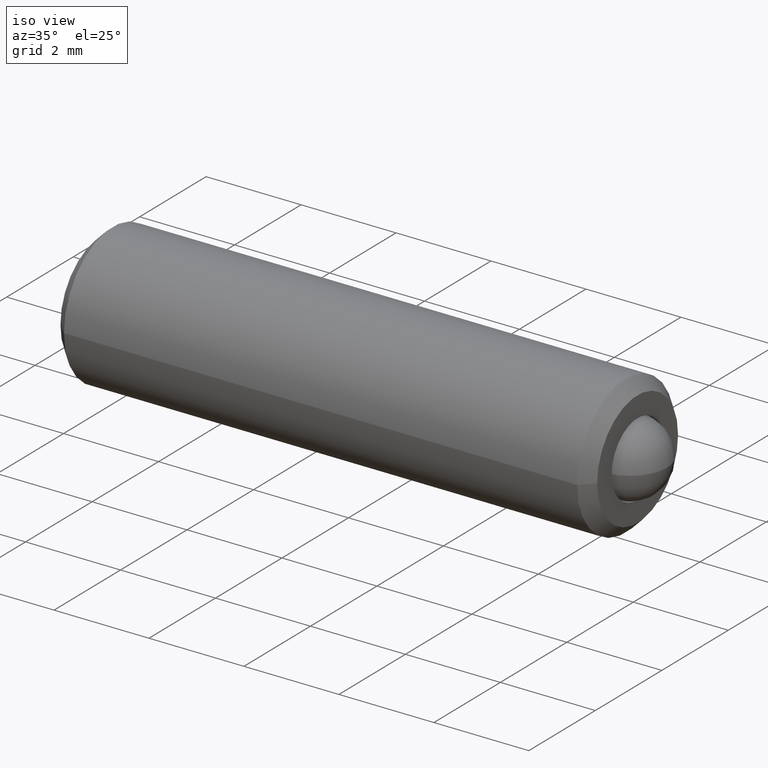
[diagram: clean part render]
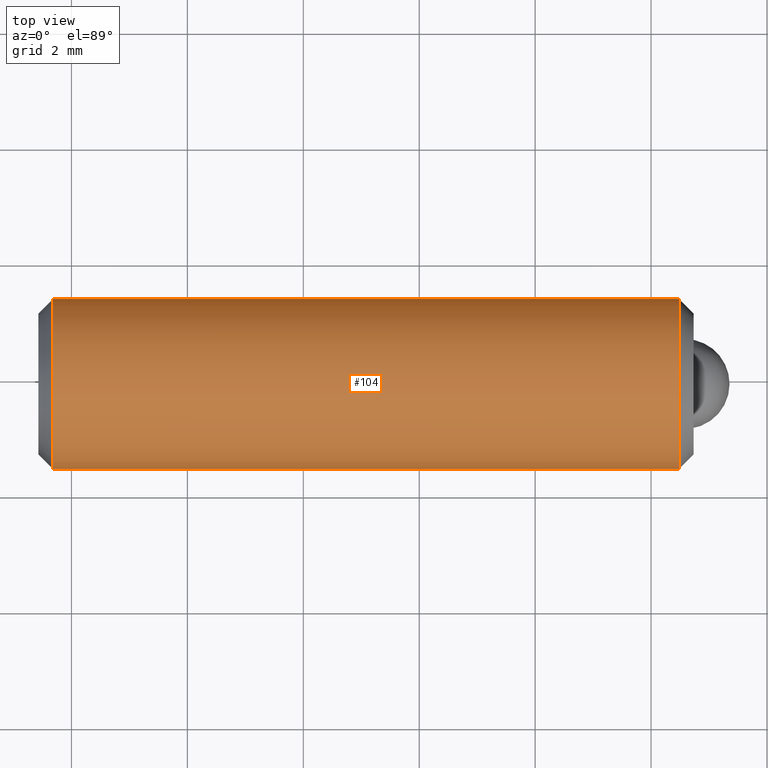
[diagram: tour spotlight — one face highlighted and labeled with its STEP entity id]
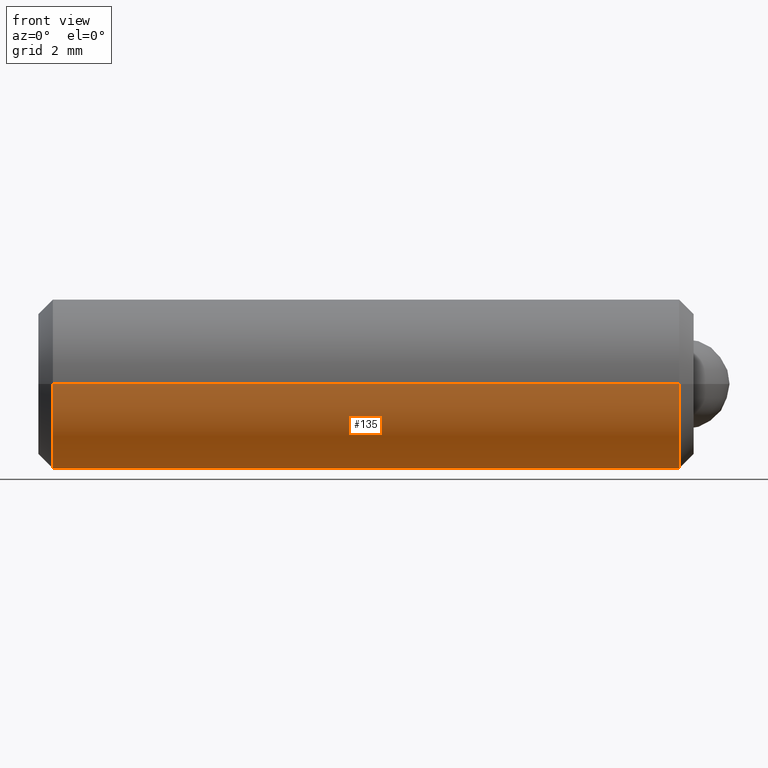
[diagram: tour spotlight — one face highlighted and labeled with its STEP entity id]
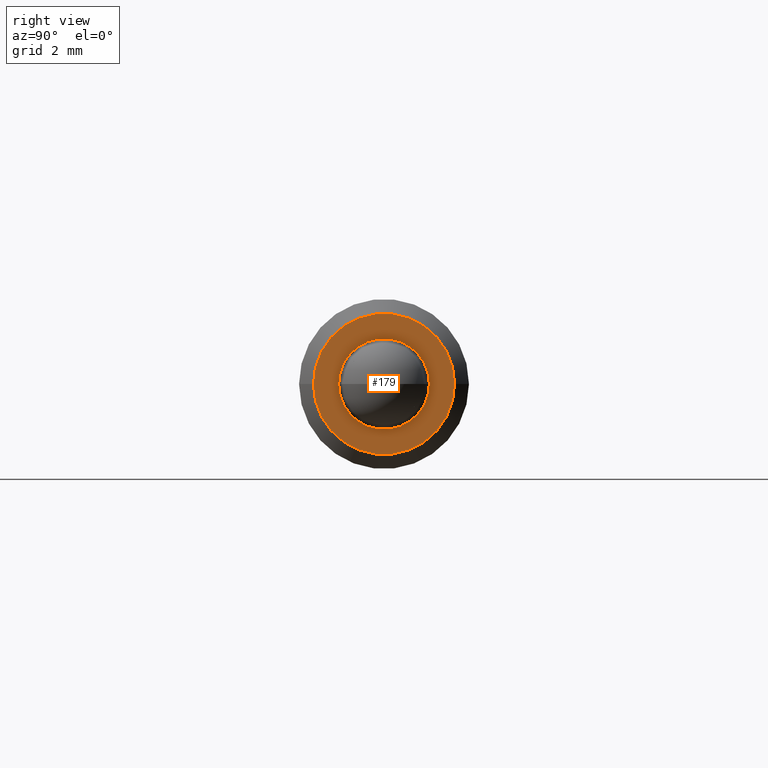
[diagram: tour spotlight — one face highlighted and labeled with its STEP entity id]
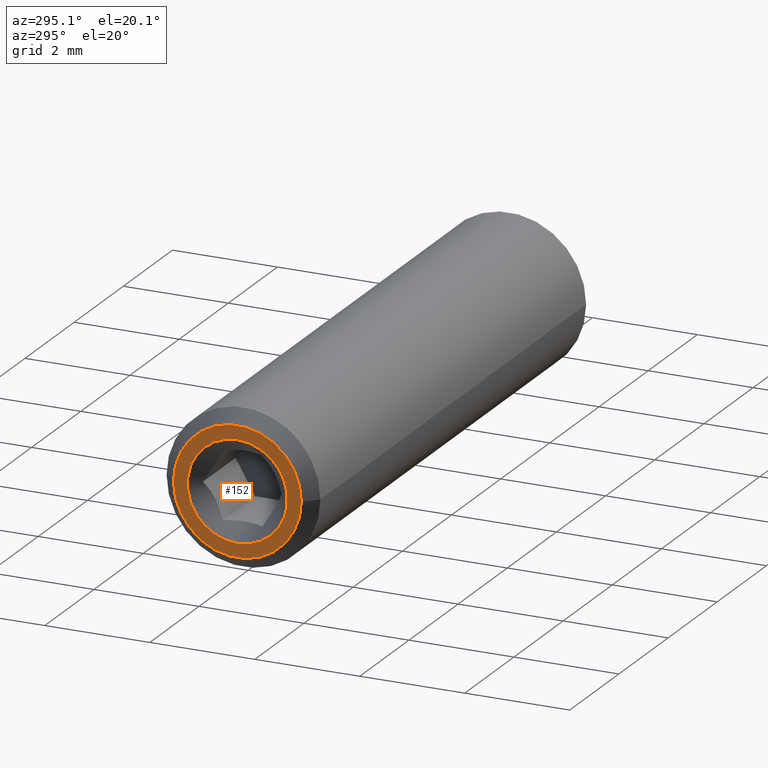
[diagram: tour spotlight — one face highlighted and labeled with its STEP entity id]
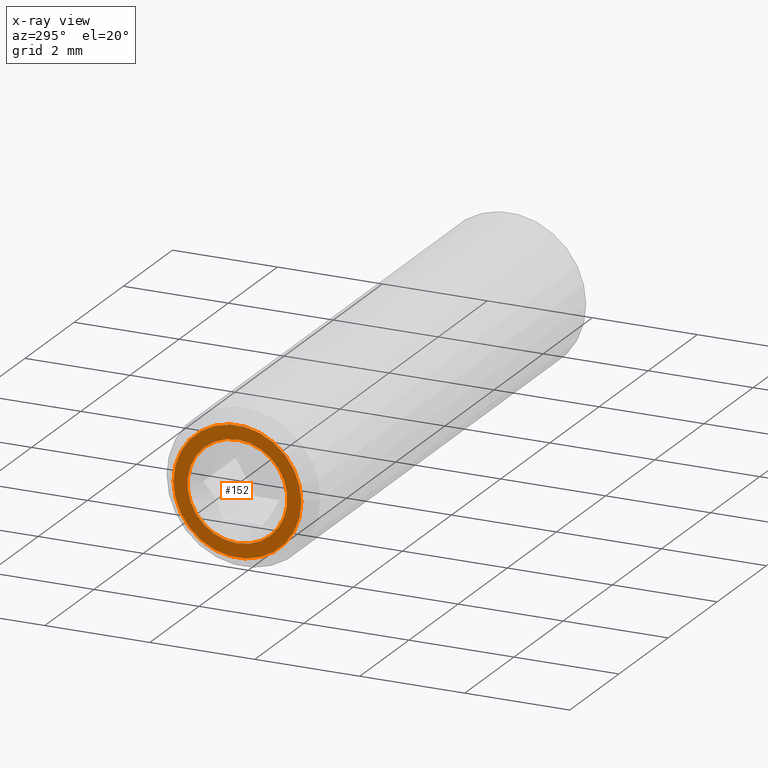
[diagram: x-ray of the same camera — body ghosted, this tour face saturated]
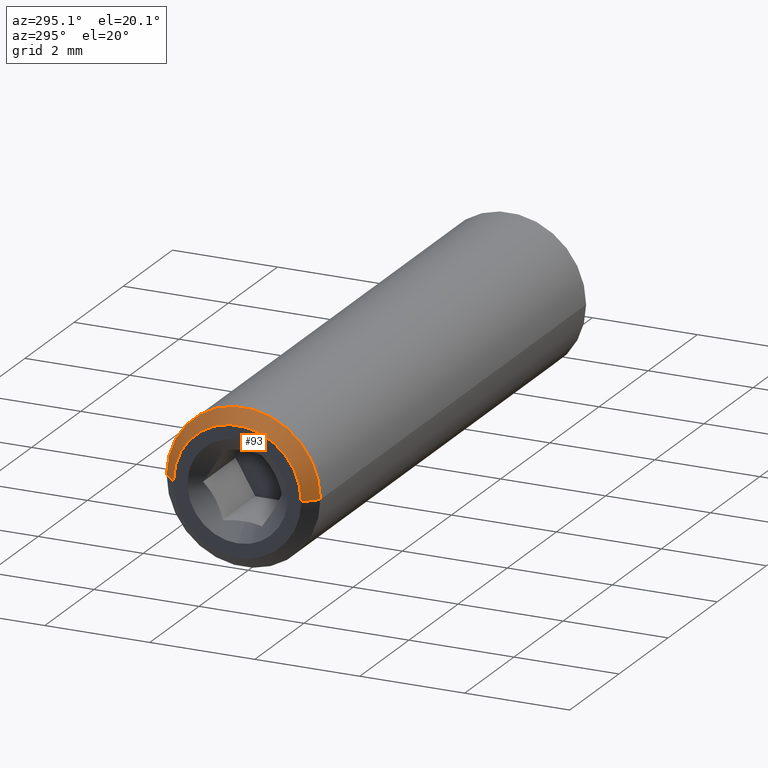
[diagram: tour spotlight — one face highlighted and labeled with its STEP entity id]
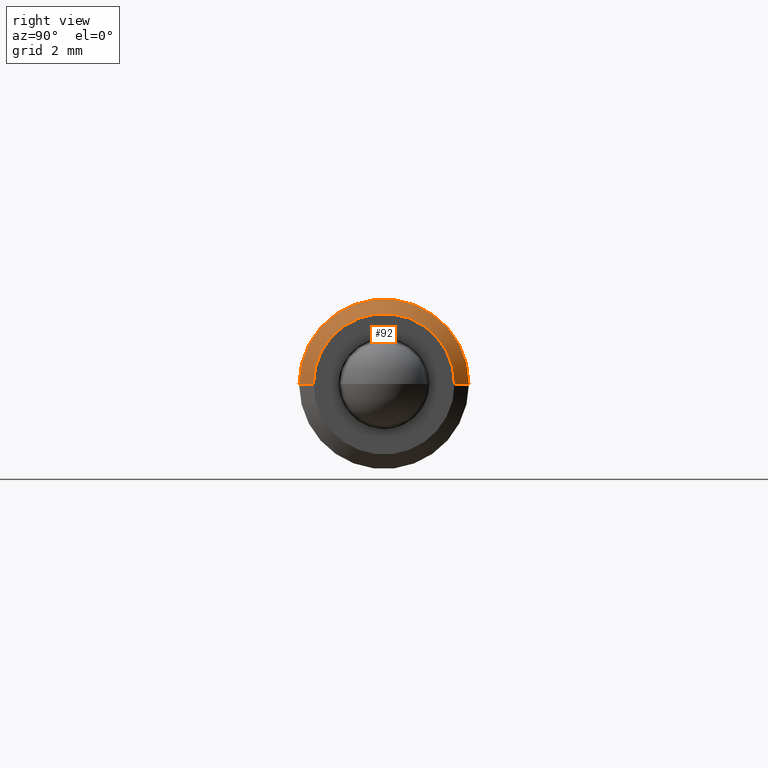
[diagram: tour spotlight — one face highlighted and labeled with its STEP entity id]
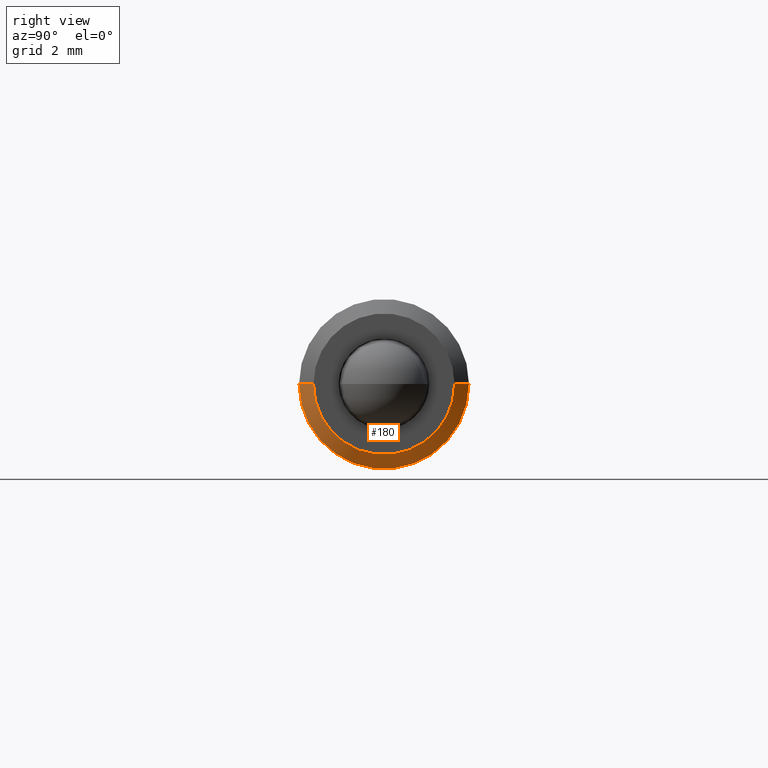
[diagram: tour spotlight — one face highlighted and labeled with its STEP entity id]
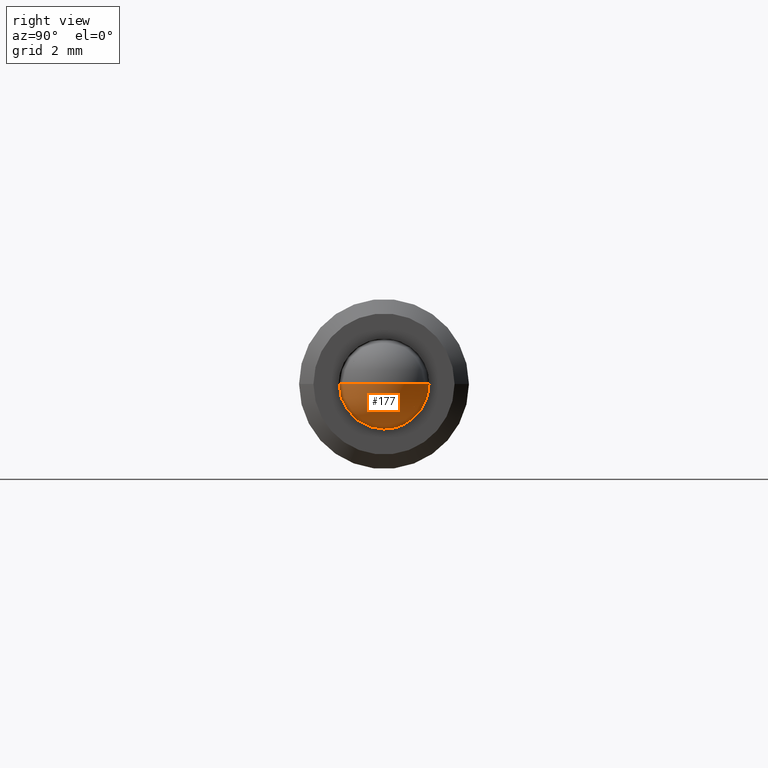
[diagram: tour spotlight — one face highlighted and labeled with its STEP entity id]
A machine part: a face-by-face anatomy tour. The part has 23 B-rep faces; the first image is the clean iso view, then the 8 largest visible faces are spotlighted one at a time (largest first), each with its STEP entity span.

Face 1 — top view, entity #104. In plain terms, the highlighted cylindrical surface (partial cylindrical patch) has radius 1.4657 mm, axis along (1, -0, -0).
Definition (entity closure, byte-faithful):
#11 = AXIS2_PLACEMENT_3D ( 'NONE', #457, #464, #536 ) ;
#29 = VECTOR ( 'NONE', #538, 39.37007874015748100 ) ;
#50 = CIRCLE ( 'NONE', #11, 0.05770329670329650600 ) ;
#104 = ADVANCED_FACE ( 'NONE', ( #274 ), #339, .T. ) ;
#115 = EDGE_CURVE ( 'NONE', #342, #366, #233, .T. ) ;
#139 = EDGE_CURVE ( 'NONE', #366, #361, #50, .T. ) ;
#168 = EDGE_CURVE ( 'NONE', #287, #361, #221, .T. ) ;
#171 = EDGE_CURVE ( 'NONE', #342, #287, #746, .T. ) ;
#221 = LINE ( 'NONE', #432, #749 ) ;
#233 = LINE ( 'NONE', #692, #29 ) ;
#274 = FACE_OUTER_BOUND ( 'NONE', #295, .T. ) ;
#285 = ORIENTED_EDGE ( 'NONE', *, *, #171, .T. ) ;
#286 = ORIENTED_EDGE ( 'NONE', *, *, #115, .F. ) ;
#287 = VERTEX_POINT ( 'NONE', #883 ) ;
#295 = EDGE_LOOP ( 'NONE', ( #285, #336, #356, #286 ) ) ;
#336 = ORIENTED_EDGE ( 'NONE', *, *, #168, .T. ) ;
#339 = CYLINDRICAL_SURFACE ( 'NONE', #858, 0.05770329670329650600 ) ;
#342 = VERTEX_POINT ( 'NONE', #877 ) ;
#356 = ORIENTED_EDGE ( 'NONE', *, *, #139, .F. ) ;
#361 = VERTEX_POINT ( 'NONE', #925 ) ;
#366 = VERTEX_POINT ( 'NONE', #875 ) ;
#400 = CARTESIAN_POINT ( 'NONE',  ( -1.036271799983990100, 0.3912487977552122100, 0.1623174067725003900 ) ) ;
#402 = DIRECTION ( 'NONE',  ( 1.000000000000000000, -4.906129737190211900E-016, -0.0000000000000000000 ) ) ;
#403 = DIRECTION ( 'NONE',  ( 0.0000000000000000000, 1.000000000000000000, 0.0000000000000000000 ) ) ;
#432 = CARTESIAN_POINT ( 'NONE',  ( -0.5269735417399165100, 0.3335455010519154400, 0.1623174067725003900 ) ) ;
#433 = DIRECTION ( 'NONE',  ( 1.000000000000000000, -4.906129737190211900E-016, -0.0000000000000000000 ) ) ;
#457 = CARTESIAN_POINT ( 'NONE',  ( -0.6108322395444296700, 0.3912487977552119900, 0.1623174067725003900 ) ) ;
#464 = DIRECTION ( 'NONE',  ( 1.000000000000000000, -4.906129737190211900E-016, -0.0000000000000000000 ) ) ;
#481 = DIRECTION ( 'NONE',  ( 1.000000000000000000, -4.906129737190211900E-016, -0.0000000000000000000 ) ) ;
#536 = DIRECTION ( 'NONE',  ( 0.0000000000000000000, 1.000000000000000000, 0.0000000000000000000 ) ) ;
#538 = DIRECTION ( 'NONE',  ( 1.000000000000000000, -4.906129737190211900E-016, -0.0000000000000000000 ) ) ;
#686 = DIRECTION ( 'NONE',  ( 0.0000000000000000000, 1.000000000000000000, 0.0000000000000000000 ) ) ;
#692 = CARTESIAN_POINT ( 'NONE',  ( -0.5269735417399165100, 0.4489520944585084200, 0.1623174067725003900 ) ) ;
#704 = CARTESIAN_POINT ( 'NONE',  ( -0.5269735417399165100, 0.3912487977552119300, 0.1623174067725003900 ) ) ;
#746 = CIRCLE ( 'NONE', #753, 0.05770329670329644300 ) ;
#749 = VECTOR ( 'NONE', #433, 39.37007874015748100 ) ;
#753 = AXIS2_PLACEMENT_3D ( 'NONE', #400, #402, #403 ) ;
#858 = AXIS2_PLACEMENT_3D ( 'NONE', #704, #481, #686 ) ;
#875 = CARTESIAN_POINT ( 'NONE',  ( -0.6108322395444296700, 0.4489520944585085300, 0.1623174067725003900 ) ) ;
#877 = CARTESIAN_POINT ( 'NONE',  ( -1.036271799983990100, 0.4489520944585086400, 0.1623174067725003900 ) ) ;
#883 = CARTESIAN_POINT ( 'NONE',  ( -1.036271799983990100, 0.3335455010519157700, 0.1623174067725003900 ) ) ;
#925 = CARTESIAN_POINT ( 'NONE',  ( -0.6108322395444296700, 0.3335455010519154900, 0.1623174067725003900 ) ) ;

Face 2 — front view, entity #135. In plain terms, the highlighted cylindrical surface (partial cylindrical patch) has radius 1.4657 mm, axis along (1, -0, -0).
Definition (entity closure, byte-faithful):
#29 = VECTOR ( 'NONE', #538, 39.37007874015748100 ) ;
#53 = AXIS2_PLACEMENT_3D ( 'NONE', #543, #588, #722 ) ;
#78 = EDGE_CURVE ( 'NONE', #287, #342, #839, .T. ) ;
#80 = EDGE_CURVE ( 'NONE', #361, #366, #793, .T. ) ;
#115 = EDGE_CURVE ( 'NONE', #342, #366, #233, .T. ) ;
#135 = ADVANCED_FACE ( 'NONE', ( #272 ), #231, .T. ) ;
#168 = EDGE_CURVE ( 'NONE', #287, #361, #221, .T. ) ;
#221 = LINE ( 'NONE', #432, #749 ) ;
#231 = CYLINDRICAL_SURFACE ( 'NONE', #53, 0.05770329670329650600 ) ;
#233 = LINE ( 'NONE', #692, #29 ) ;
#272 = FACE_OUTER_BOUND ( 'NONE', #309, .T. ) ;
#287 = VERTEX_POINT ( 'NONE', #883 ) ;
#309 = EDGE_LOOP ( 'NONE', ( #1045, #1042, #1064, #1050 ) ) ;
#342 = VERTEX_POINT ( 'NONE', #877 ) ;
#361 = VERTEX_POINT ( 'NONE', #925 ) ;
#366 = VERTEX_POINT ( 'NONE', #875 ) ;
#432 = CARTESIAN_POINT ( 'NONE',  ( -0.5269735417399165100, 0.3335455010519154400, 0.1623174067725003900 ) ) ;
#433 = DIRECTION ( 'NONE',  ( 1.000000000000000000, -4.906129737190211900E-016, -0.0000000000000000000 ) ) ;
#538 = DIRECTION ( 'NONE',  ( 1.000000000000000000, -4.906129737190211900E-016, -0.0000000000000000000 ) ) ;
#543 = CARTESIAN_POINT ( 'NONE',  ( -0.5269735417399165100, 0.3912487977552119300, 0.1623174067725003900 ) ) ;
#588 = DIRECTION ( 'NONE',  ( 1.000000000000000000, -4.906129737190211900E-016, -0.0000000000000000000 ) ) ;
#692 = CARTESIAN_POINT ( 'NONE',  ( -0.5269735417399165100, 0.4489520944585084200, 0.1623174067725003900 ) ) ;
#722 = DIRECTION ( 'NONE',  ( 0.0000000000000000000, 1.000000000000000000, 0.0000000000000000000 ) ) ;
#749 = VECTOR ( 'NONE', #433, 39.37007874015748100 ) ;
#793 = CIRCLE ( 'NONE', #845, 0.05770329670329650600 ) ;
#803 = AXIS2_PLACEMENT_3D ( 'NONE', #974, #1036, #992 ) ;
#839 = CIRCLE ( 'NONE', #803, 0.05770329670329644300 ) ;
#845 = AXIS2_PLACEMENT_3D ( 'NONE', #1025, #985, #1035 ) ;
#875 = CARTESIAN_POINT ( 'NONE',  ( -0.6108322395444296700, 0.4489520944585085300, 0.1623174067725003900 ) ) ;
#877 = CARTESIAN_POINT ( 'NONE',  ( -1.036271799983990100, 0.4489520944585086400, 0.1623174067725003900 ) ) ;
#883 = CARTESIAN_POINT ( 'NONE',  ( -1.036271799983990100, 0.3335455010519157700, 0.1623174067725003900 ) ) ;
#925 = CARTESIAN_POINT ( 'NONE',  ( -0.6108322395444296700, 0.3335455010519154900, 0.1623174067725003900 ) ) ;
#974 = CARTESIAN_POINT ( 'NONE',  ( -1.036271799983990100, 0.3912487977552122100, 0.1623174067725003900 ) ) ;
#985 = DIRECTION ( 'NONE',  ( 1.000000000000000000, -4.906129737190211900E-016, -0.0000000000000000000 ) ) ;
#992 = DIRECTION ( 'NONE',  ( 0.0000000000000000000, 1.000000000000000000, 0.0000000000000000000 ) ) ;
#1025 = CARTESIAN_POINT ( 'NONE',  ( -0.6108322395444296700, 0.3912487977552119900, 0.1623174067725003900 ) ) ;
#1035 = DIRECTION ( 'NONE',  ( 0.0000000000000000000, 1.000000000000000000, 0.0000000000000000000 ) ) ;
#1036 = DIRECTION ( 'NONE',  ( 1.000000000000000000, -4.906129737190211900E-016, -0.0000000000000000000 ) ) ;
#1042 = ORIENTED_EDGE ( 'NONE', *, *, #78, .T. ) ;
#1045 = ORIENTED_EDGE ( 'NONE', *, *, #168, .F. ) ;
#1050 = ORIENTED_EDGE ( 'NONE', *, *, #80, .F. ) ;
#1064 = ORIENTED_EDGE ( 'NONE', *, *, #115, .T. ) ;

Face 3 — right view, entity #179. In plain terms, the highlighted planar face has unit normal (1, -0, -0).
Definition (entity closure, byte-faithful):
#75 = EDGE_CURVE ( 'NONE', #324, #346, #846, .T. ) ;
#76 = EDGE_CURVE ( 'NONE', #282, #326, #822, .T. ) ;
#179 = ADVANCED_FACE ( 'NONE', ( #258, #259 ), #513, .T. ) ;
#182 = EDGE_CURVE ( 'NONE', #326, #282, #778, .T. ) ;
#185 = EDGE_CURVE ( 'NONE', #346, #324, #789, .T. ) ;
#258 = FACE_OUTER_BOUND ( 'NONE', #304, .T. ) ;
#259 = FACE_BOUND ( 'NONE', #308, .T. ) ;
#282 = VERTEX_POINT ( 'NONE', #900 ) ;
#304 = EDGE_LOOP ( 'NONE', ( #1054, #1048 ) ) ;
#308 = EDGE_LOOP ( 'NONE', ( #1043, #1056 ) ) ;
#324 = VERTEX_POINT ( 'NONE', #934 ) ;
#326 = VERTEX_POINT ( 'NONE', #923 ) ;
#346 = VERTEX_POINT ( 'NONE', #885 ) ;
#425 = CARTESIAN_POINT ( 'NONE',  ( -0.6010520197642105200, 0.3912487977552119900, 0.1623174067725003900 ) ) ;
#513 = PLANE ( 'NONE',  #779 ) ;
#514 = CARTESIAN_POINT ( 'NONE',  ( -0.6010520197642108500, 0.009662394496970686300, 0.1623174067725003900 ) ) ;
#515 = DIRECTION ( 'NONE',  ( 1.000000000000000000, -4.906129737190211900E-016, -0.0000000000000000000 ) ) ;
#522 = DIRECTION ( 'NONE',  ( 4.906129737190211900E-016, 1.000000000000000000, 0.0000000000000000000 ) ) ;
#619 = DIRECTION ( 'NONE',  ( 1.000000000000000000, -4.906129737190211900E-016, -0.0000000000000000000 ) ) ;
#644 = DIRECTION ( 'NONE',  ( 0.0000000000000000000, 1.000000000000000000, 0.0000000000000000000 ) ) ;
#775 = AXIS2_PLACEMENT_3D ( 'NONE', #425, #619, #644 ) ;
#778 = CIRCLE ( 'NONE', #775, 0.03080769230769248700 ) ;
#779 = AXIS2_PLACEMENT_3D ( 'NONE', #514, #515, #522 ) ;
#789 = CIRCLE ( 'NONE', #790, 0.04792307692307736000 ) ;
#790 = AXIS2_PLACEMENT_3D ( 'NONE', #879, #928, #929 ) ;
#813 = AXIS2_PLACEMENT_3D ( 'NONE', #1017, #965, #1021 ) ;
#822 = CIRCLE ( 'NONE', #856, 0.03080769230769248700 ) ;
#846 = CIRCLE ( 'NONE', #813, 0.04792307692307736000 ) ;
#856 = AXIS2_PLACEMENT_3D ( 'NONE', #997, #1037, #966 ) ;
#879 = CARTESIAN_POINT ( 'NONE',  ( -0.6010520197642108500, 0.3912487977552119900, 0.1623174067725003900 ) ) ;
#885 = CARTESIAN_POINT ( 'NONE',  ( -0.6010520197642108500, 0.4391718746782893300, 0.1623174067725003900 ) ) ;
#900 = CARTESIAN_POINT ( 'NONE',  ( -0.6010520197642105200, 0.4220564900629044700, 0.1623174067725003900 ) ) ;
#923 = CARTESIAN_POINT ( 'NONE',  ( -0.6010520197642105200, 0.3604411054475195100, 0.1623174067725003900 ) ) ;
#928 = DIRECTION ( 'NONE',  ( 1.000000000000000000, -4.906129737190211900E-016, -0.0000000000000000000 ) ) ;
#929 = DIRECTION ( 'NONE',  ( 0.0000000000000000000, 1.000000000000000000, 0.0000000000000000000 ) ) ;
#934 = CARTESIAN_POINT ( 'NONE',  ( -0.6010520197642108500, 0.3433257208321346400, 0.1623174067725003900 ) ) ;
#965 = DIRECTION ( 'NONE',  ( 1.000000000000000000, -4.906129737190211900E-016, -0.0000000000000000000 ) ) ;
#966 = DIRECTION ( 'NONE',  ( 0.0000000000000000000, 1.000000000000000000, 0.0000000000000000000 ) ) ;
#997 = CARTESIAN_POINT ( 'NONE',  ( -0.6010520197642105200, 0.3912487977552119900, 0.1623174067725003900 ) ) ;
#1017 = CARTESIAN_POINT ( 'NONE',  ( -0.6010520197642108500, 0.3912487977552119900, 0.1623174067725003900 ) ) ;
#1021 = DIRECTION ( 'NONE',  ( 0.0000000000000000000, 1.000000000000000000, 0.0000000000000000000 ) ) ;
#1037 = DIRECTION ( 'NONE',  ( 1.000000000000000000, -4.906129737190211900E-016, -0.0000000000000000000 ) ) ;
#1043 = ORIENTED_EDGE ( 'NONE', *, *, #76, .F. ) ;
#1048 = ORIENTED_EDGE ( 'NONE', *, *, #185, .T. ) ;
#1054 = ORIENTED_EDGE ( 'NONE', *, *, #75, .T. ) ;
#1056 = ORIENTED_EDGE ( 'NONE', *, *, #182, .F. ) ;

Face 4 — auxiliary view, entity #152. An x-ray twin of the same camera follows (body ghosted, this face saturated) — the face is partly hidden behind the body. In plain terms, the highlighted planar face has unit normal (1, -0, -0).
Definition (entity closure, byte-faithful):
#14 = AXIS2_PLACEMENT_3D ( 'NONE', #687, #683, #685 ) ;
#51 = AXIS2_PLACEMENT_3D ( 'NONE', #490, #711, #710 ) ;
#77 = EDGE_CURVE ( 'NONE', #335, #289, #843, .T. ) ;
#79 = EDGE_CURVE ( 'NONE', #283, #277, #863, .T. ) ;
#86 = EDGE_CURVE ( 'NONE', #277, #283, #852, .T. ) ;
#114 = EDGE_CURVE ( 'NONE', #289, #335, #838, .T. ) ;
#152 = ADVANCED_FACE ( 'NONE', ( #222, #219 ), #516, .F. ) ;
#219 = FACE_OUTER_BOUND ( 'NONE', #312, .T. ) ;
#222 = FACE_BOUND ( 'NONE', #315, .T. ) ;
#277 = VERTEX_POINT ( 'NONE', #931 ) ;
#283 = VERTEX_POINT ( 'NONE', #920 ) ;
#289 = VERTEX_POINT ( 'NONE', #894 ) ;
#312 = EDGE_LOOP ( 'NONE', ( #1049, #1062 ) ) ;
#315 = EDGE_LOOP ( 'NONE', ( #1057, #1046 ) ) ;
#335 = VERTEX_POINT ( 'NONE', #895 ) ;
#453 = CARTESIAN_POINT ( 'NONE',  ( -1.046052019764210000, 0.3912487977552124300, 0.1623174067724998400 ) ) ;
#490 = CARTESIAN_POINT ( 'NONE',  ( -1.046052019764210300, 0.009662394496967477100, 0.1623174067725003900 ) ) ;
#516 = PLANE ( 'NONE',  #51 ) ;
#559 = DIRECTION ( 'NONE',  ( -1.000000000000000000, 4.906129737190211900E-016, 0.0000000000000000000 ) ) ;
#608 = DIRECTION ( 'NONE',  ( 0.0000000000000000000, 0.0000000000000000000, 1.000000000000000000 ) ) ;
#683 = DIRECTION ( 'NONE',  ( 1.000000000000000000, -4.906129737190211900E-016, -0.0000000000000000000 ) ) ;
#685 = DIRECTION ( 'NONE',  ( 0.0000000000000000000, 1.000000000000000000, 0.0000000000000000000 ) ) ;
#687 = CARTESIAN_POINT ( 'NONE',  ( -1.046052019764210000, 0.3912487977552122100, 0.1623174067725003900 ) ) ;
#710 = DIRECTION ( 'NONE',  ( 4.906129737190211900E-016, 1.000000000000000000, 0.0000000000000000000 ) ) ;
#711 = DIRECTION ( 'NONE',  ( 1.000000000000000000, -4.906129737190211900E-016, -0.0000000000000000000 ) ) ;
#802 = AXIS2_PLACEMENT_3D ( 'NONE', #1033, #1007, #1023 ) ;
#804 = AXIS2_PLACEMENT_3D ( 'NONE', #1024, #1019, #983 ) ;
#821 = AXIS2_PLACEMENT_3D ( 'NONE', #453, #559, #608 ) ;
#838 = CIRCLE ( 'NONE', #14, 0.04792307692307702000 ) ;
#843 = CIRCLE ( 'NONE', #804, 0.04792307692307702000 ) ;
#852 = CIRCLE ( 'NONE', #821, 0.03750000000000090100 ) ;
#863 = CIRCLE ( 'NONE', #802, 0.03750000000000090100 ) ;
#894 = CARTESIAN_POINT ( 'NONE',  ( -1.046052019764210000, 0.4391718746782892200, 0.1623174067725003900 ) ) ;
#895 = CARTESIAN_POINT ( 'NONE',  ( -1.046052019764210000, 0.3433257208321351900, 0.1623174067725003900 ) ) ;
#920 = CARTESIAN_POINT ( 'NONE',  ( -1.046052019764210000, 0.3912487977552124300, 0.1998174067725007300 ) ) ;
#931 = CARTESIAN_POINT ( 'NONE',  ( -1.046052019764210000, 0.3912487977552124300, 0.1248174067724989500 ) ) ;
#983 = DIRECTION ( 'NONE',  ( 0.0000000000000000000, 1.000000000000000000, 0.0000000000000000000 ) ) ;
#1007 = DIRECTION ( 'NONE',  ( -1.000000000000000000, 4.906129737190211900E-016, 0.0000000000000000000 ) ) ;
#1019 = DIRECTION ( 'NONE',  ( 1.000000000000000000, -4.906129737190211900E-016, -0.0000000000000000000 ) ) ;
#1023 = DIRECTION ( 'NONE',  ( 0.0000000000000000000, 0.0000000000000000000, 1.000000000000000000 ) ) ;
#1024 = CARTESIAN_POINT ( 'NONE',  ( -1.046052019764210000, 0.3912487977552122100, 0.1623174067725003900 ) ) ;
#1033 = CARTESIAN_POINT ( 'NONE',  ( -1.046052019764210000, 0.3912487977552124300, 0.1623174067724998400 ) ) ;
#1046 = ORIENTED_EDGE ( 'NONE', *, *, #86, .F. ) ;
#1049 = ORIENTED_EDGE ( 'NONE', *, *, #114, .F. ) ;
#1057 = ORIENTED_EDGE ( 'NONE', *, *, #79, .F. ) ;
#1062 = ORIENTED_EDGE ( 'NONE', *, *, #77, .F. ) ;

Face 5 — auxiliary view, entity #93. In plain terms, the highlighted conical surface has half-angle 45 deg.
Definition (entity closure, byte-faithful):
#14 = AXIS2_PLACEMENT_3D ( 'NONE', #687, #683, #685 ) ;
#54 = VECTOR ( 'NONE', #569, 39.37007874015748100 ) ;
#59 = VECTOR ( 'NONE', #691, 39.37007874015748100 ) ;
#93 = ADVANCED_FACE ( 'NONE', ( #388 ), #829, .T. ) ;
#114 = EDGE_CURVE ( 'NONE', #289, #335, #838, .T. ) ;
#123 = EDGE_CURVE ( 'NONE', #335, #287, #238, .T. ) ;
#140 = EDGE_CURVE ( 'NONE', #289, #342, #217, .T. ) ;
#171 = EDGE_CURVE ( 'NONE', #342, #287, #746, .T. ) ;
#217 = LINE ( 'NONE', #537, #54 ) ;
#238 = LINE ( 'NONE', #533, #59 ) ;
#287 = VERTEX_POINT ( 'NONE', #883 ) ;
#289 = VERTEX_POINT ( 'NONE', #894 ) ;
#299 = EDGE_LOOP ( 'NONE', ( #375, #337, #334, #377 ) ) ;
#334 = ORIENTED_EDGE ( 'NONE', *, *, #171, .F. ) ;
#335 = VERTEX_POINT ( 'NONE', #895 ) ;
#337 = ORIENTED_EDGE ( 'NONE', *, *, #123, .T. ) ;
#342 = VERTEX_POINT ( 'NONE', #877 ) ;
#375 = ORIENTED_EDGE ( 'NONE', *, *, #114, .T. ) ;
#377 = ORIENTED_EDGE ( 'NONE', *, *, #140, .F. ) ;
#388 = FACE_OUTER_BOUND ( 'NONE', #299, .T. ) ;
#400 = CARTESIAN_POINT ( 'NONE',  ( -1.036271799983990100, 0.3912487977552122100, 0.1623174067725003900 ) ) ;
#402 = DIRECTION ( 'NONE',  ( 1.000000000000000000, -4.906129737190211900E-016, -0.0000000000000000000 ) ) ;
#403 = DIRECTION ( 'NONE',  ( 0.0000000000000000000, 1.000000000000000000, 0.0000000000000000000 ) ) ;
#449 = DIRECTION ( 'NONE',  ( 1.000000000000000000, -4.906129737190211900E-016, -0.0000000000000000000 ) ) ;
#477 = DIRECTION ( 'NONE',  ( 0.0000000000000000000, 1.000000000000000000, 0.0000000000000000000 ) ) ;
#533 = CARTESIAN_POINT ( 'NONE',  ( -1.046052019764210000, 0.3433257208321351900, 0.1623174067725003900 ) ) ;
#537 = CARTESIAN_POINT ( 'NONE',  ( -1.046052019764210000, 0.4391718746782892200, 0.1623174067725003900 ) ) ;
#569 = DIRECTION ( 'NONE',  ( 0.7071067811865672200, 0.7071067811865278100, 0.0000000000000000000 ) ) ;
#659 = CARTESIAN_POINT ( 'NONE',  ( -1.046052019764210000, 0.3912487977552122100, 0.1623174067725003900 ) ) ;
#683 = DIRECTION ( 'NONE',  ( 1.000000000000000000, -4.906129737190211900E-016, -0.0000000000000000000 ) ) ;
#685 = DIRECTION ( 'NONE',  ( 0.0000000000000000000, 1.000000000000000000, 0.0000000000000000000 ) ) ;
#687 = CARTESIAN_POINT ( 'NONE',  ( -1.046052019764210000, 0.3912487977552122100, 0.1623174067725003900 ) ) ;
#691 = DIRECTION ( 'NONE',  ( 0.7071067811865665600, -0.7071067811865284800, 8.659560562354696200E-017 ) ) ;
#746 = CIRCLE ( 'NONE', #753, 0.05770329670329644300 ) ;
#753 = AXIS2_PLACEMENT_3D ( 'NONE', #400, #402, #403 ) ;
#819 = AXIS2_PLACEMENT_3D ( 'NONE', #659, #449, #477 ) ;
#829 = CONICAL_SURFACE ( 'NONE', #819, 0.04792307692307702000, 0.7853981633974208600 ) ;
#838 = CIRCLE ( 'NONE', #14, 0.04792307692307702000 ) ;
#877 = CARTESIAN_POINT ( 'NONE',  ( -1.036271799983990100, 0.4489520944585086400, 0.1623174067725003900 ) ) ;
#883 = CARTESIAN_POINT ( 'NONE',  ( -1.036271799983990100, 0.3335455010519157700, 0.1623174067725003900 ) ) ;
#894 = CARTESIAN_POINT ( 'NONE',  ( -1.046052019764210000, 0.4391718746782892200, 0.1623174067725003900 ) ) ;
#895 = CARTESIAN_POINT ( 'NONE',  ( -1.046052019764210000, 0.3433257208321351900, 0.1623174067725003900 ) ) ;

Face 6 — right view, entity #92. In plain terms, the highlighted conical surface has half-angle 45 deg.
Definition (entity closure, byte-faithful):
#11 = AXIS2_PLACEMENT_3D ( 'NONE', #457, #464, #536 ) ;
#15 = VECTOR ( 'NONE', #729, 39.37007874015748100 ) ;
#30 = VECTOR ( 'NONE', #597, 39.37007874015748100 ) ;
#50 = CIRCLE ( 'NONE', #11, 0.05770329670329650600 ) ;
#92 = ADVANCED_FACE ( 'NONE', ( #378 ), #840, .T. ) ;
#139 = EDGE_CURVE ( 'NONE', #366, #361, #50, .T. ) ;
#144 = EDGE_CURVE ( 'NONE', #324, #361, #235, .T. ) ;
#154 = EDGE_CURVE ( 'NONE', #346, #366, #245, .T. ) ;
#185 = EDGE_CURVE ( 'NONE', #346, #324, #789, .T. ) ;
#235 = LINE ( 'NONE', #712, #30 ) ;
#245 = LINE ( 'NONE', #706, #15 ) ;
#305 = EDGE_LOOP ( 'NONE', ( #345, #330, #333, #357 ) ) ;
#324 = VERTEX_POINT ( 'NONE', #934 ) ;
#330 = ORIENTED_EDGE ( 'NONE', *, *, #154, .T. ) ;
#333 = ORIENTED_EDGE ( 'NONE', *, *, #139, .T. ) ;
#345 = ORIENTED_EDGE ( 'NONE', *, *, #185, .F. ) ;
#346 = VERTEX_POINT ( 'NONE', #885 ) ;
#357 = ORIENTED_EDGE ( 'NONE', *, *, #144, .F. ) ;
#361 = VERTEX_POINT ( 'NONE', #925 ) ;
#366 = VERTEX_POINT ( 'NONE', #875 ) ;
#378 = FACE_OUTER_BOUND ( 'NONE', #305, .T. ) ;
#457 = CARTESIAN_POINT ( 'NONE',  ( -0.6108322395444296700, 0.3912487977552119900, 0.1623174067725003900 ) ) ;
#464 = DIRECTION ( 'NONE',  ( 1.000000000000000000, -4.906129737190211900E-016, -0.0000000000000000000 ) ) ;
#510 = CARTESIAN_POINT ( 'NONE',  ( -0.6010520197642108500, 0.3912487977552119900, 0.1623174067725003900 ) ) ;
#511 = DIRECTION ( 'NONE',  ( -1.000000000000000000, 4.906129737190211900E-016, 0.0000000000000000000 ) ) ;
#536 = DIRECTION ( 'NONE',  ( 0.0000000000000000000, 1.000000000000000000, 0.0000000000000000000 ) ) ;
#597 = DIRECTION ( 'NONE',  ( -0.7071067811865380200, -0.7071067811865570100, 0.0000000000000000000 ) ) ;
#706 = CARTESIAN_POINT ( 'NONE',  ( -0.6010520197642108500, 0.4391718746782893300, 0.1623174067725003900 ) ) ;
#712 = CARTESIAN_POINT ( 'NONE',  ( -0.6010520197642108500, 0.3433257208321346400, 0.1623174067725003900 ) ) ;
#729 = DIRECTION ( 'NONE',  ( -0.7071067811865373600, 0.7071067811865576800, 8.659560562355053700E-017 ) ) ;
#732 = DIRECTION ( 'NONE',  ( 0.0000000000000000000, -1.000000000000000000, 0.0000000000000000000 ) ) ;
#789 = CIRCLE ( 'NONE', #790, 0.04792307692307736000 ) ;
#790 = AXIS2_PLACEMENT_3D ( 'NONE', #879, #928, #929 ) ;
#840 = CONICAL_SURFACE ( 'NONE', #870, 0.04792307692307736000, 0.7853981633974621600 ) ;
#870 = AXIS2_PLACEMENT_3D ( 'NONE', #510, #511, #732 ) ;
#875 = CARTESIAN_POINT ( 'NONE',  ( -0.6108322395444296700, 0.4489520944585085300, 0.1623174067725003900 ) ) ;
#879 = CARTESIAN_POINT ( 'NONE',  ( -0.6010520197642108500, 0.3912487977552119900, 0.1623174067725003900 ) ) ;
#885 = CARTESIAN_POINT ( 'NONE',  ( -0.6010520197642108500, 0.4391718746782893300, 0.1623174067725003900 ) ) ;
#925 = CARTESIAN_POINT ( 'NONE',  ( -0.6108322395444296700, 0.3335455010519154900, 0.1623174067725003900 ) ) ;
#928 = DIRECTION ( 'NONE',  ( 1.000000000000000000, -4.906129737190211900E-016, -0.0000000000000000000 ) ) ;
#929 = DIRECTION ( 'NONE',  ( 0.0000000000000000000, 1.000000000000000000, 0.0000000000000000000 ) ) ;
#934 = CARTESIAN_POINT ( 'NONE',  ( -0.6010520197642108500, 0.3433257208321346400, 0.1623174067725003900 ) ) ;

Face 7 — right view, entity #180. In plain terms, the highlighted conical surface has half-angle 45 deg.
Definition (entity closure, byte-faithful):
#15 = VECTOR ( 'NONE', #729, 39.37007874015748100 ) ;
#30 = VECTOR ( 'NONE', #597, 39.37007874015748100 ) ;
#75 = EDGE_CURVE ( 'NONE', #324, #346, #846, .T. ) ;
#80 = EDGE_CURVE ( 'NONE', #361, #366, #793, .T. ) ;
#144 = EDGE_CURVE ( 'NONE', #324, #361, #235, .T. ) ;
#154 = EDGE_CURVE ( 'NONE', #346, #366, #245, .T. ) ;
#180 = ADVANCED_FACE ( 'NONE', ( #262 ), #784, .T. ) ;
#235 = LINE ( 'NONE', #712, #30 ) ;
#245 = LINE ( 'NONE', #706, #15 ) ;
#262 = FACE_OUTER_BOUND ( 'NONE', #307, .T. ) ;
#307 = EDGE_LOOP ( 'NONE', ( #1063, #1051, #1061, #1044 ) ) ;
#324 = VERTEX_POINT ( 'NONE', #934 ) ;
#346 = VERTEX_POINT ( 'NONE', #885 ) ;
#361 = VERTEX_POINT ( 'NONE', #925 ) ;
#366 = VERTEX_POINT ( 'NONE', #875 ) ;
#401 = CARTESIAN_POINT ( 'NONE',  ( -0.6010520197642108500, 0.3912487977552119900, 0.1623174067725003900 ) ) ;
#405 = DIRECTION ( 'NONE',  ( -1.000000000000000000, 4.906129737190211900E-016, 0.0000000000000000000 ) ) ;
#597 = DIRECTION ( 'NONE',  ( -0.7071067811865380200, -0.7071067811865570100, 0.0000000000000000000 ) ) ;
#639 = DIRECTION ( 'NONE',  ( 0.0000000000000000000, -1.000000000000000000, 0.0000000000000000000 ) ) ;
#706 = CARTESIAN_POINT ( 'NONE',  ( -0.6010520197642108500, 0.4391718746782893300, 0.1623174067725003900 ) ) ;
#712 = CARTESIAN_POINT ( 'NONE',  ( -0.6010520197642108500, 0.3433257208321346400, 0.1623174067725003900 ) ) ;
#729 = DIRECTION ( 'NONE',  ( -0.7071067811865373600, 0.7071067811865576800, 8.659560562355053700E-017 ) ) ;
#736 = AXIS2_PLACEMENT_3D ( 'NONE', #401, #405, #639 ) ;
#784 = CONICAL_SURFACE ( 'NONE', #736, 0.04792307692307736000, 0.7853981633974621600 ) ;
#793 = CIRCLE ( 'NONE', #845, 0.05770329670329650600 ) ;
#813 = AXIS2_PLACEMENT_3D ( 'NONE', #1017, #965, #1021 ) ;
#845 = AXIS2_PLACEMENT_3D ( 'NONE', #1025, #985, #1035 ) ;
#846 = CIRCLE ( 'NONE', #813, 0.04792307692307736000 ) ;
#875 = CARTESIAN_POINT ( 'NONE',  ( -0.6108322395444296700, 0.4489520944585085300, 0.1623174067725003900 ) ) ;
#885 = CARTESIAN_POINT ( 'NONE',  ( -0.6010520197642108500, 0.4391718746782893300, 0.1623174067725003900 ) ) ;
#925 = CARTESIAN_POINT ( 'NONE',  ( -0.6108322395444296700, 0.3335455010519154900, 0.1623174067725003900 ) ) ;
#934 = CARTESIAN_POINT ( 'NONE',  ( -0.6010520197642108500, 0.3433257208321346400, 0.1623174067725003900 ) ) ;
#965 = DIRECTION ( 'NONE',  ( 1.000000000000000000, -4.906129737190211900E-016, -0.0000000000000000000 ) ) ;
#985 = DIRECTION ( 'NONE',  ( 1.000000000000000000, -4.906129737190211900E-016, -0.0000000000000000000 ) ) ;
#1017 = CARTESIAN_POINT ( 'NONE',  ( -0.6010520197642108500, 0.3912487977552119900, 0.1623174067725003900 ) ) ;
#1021 = DIRECTION ( 'NONE',  ( 0.0000000000000000000, 1.000000000000000000, 0.0000000000000000000 ) ) ;
#1025 = CARTESIAN_POINT ( 'NONE',  ( -0.6108322395444296700, 0.3912487977552119900, 0.1623174067725003900 ) ) ;
#1035 = DIRECTION ( 'NONE',  ( 0.0000000000000000000, 1.000000000000000000, 0.0000000000000000000 ) ) ;
#1044 = ORIENTED_EDGE ( 'NONE', *, *, #80, .T. ) ;
#1051 = ORIENTED_EDGE ( 'NONE', *, *, #75, .F. ) ;
#1061 = ORIENTED_EDGE ( 'NONE', *, *, #144, .T. ) ;
#1063 = ORIENTED_EDGE ( 'NONE', *, *, #154, .F. ) ;

Face 8 — right view, entity #177. In plain terms, the highlighted spherical surface has radius 0.7763 mm.
Definition (entity closure, byte-faithful):
#52 = CIRCLE ( 'NONE', #61, 0.03056318681318671500 ) ;
#61 = AXIS2_PLACEMENT_3D ( 'NONE', #709, #708, #707 ) ;
#153 = EDGE_CURVE ( 'NONE', #341, #360, #52, .T. ) ;
#169 = EDGE_CURVE ( 'NONE', #341, #360, #737, .T. ) ;
#177 = ADVANCED_FACE ( 'NONE', ( #251 ), #254, .T. ) ;
#251 = FACE_OUTER_BOUND ( 'NONE', #291, .T. ) ;
#254 = SPHERICAL_SURFACE ( 'NONE', #771, 0.03056318681318671500 ) ;
#291 = EDGE_LOOP ( 'NONE', ( #1078, #1076 ) ) ;
#341 = VERTEX_POINT ( 'NONE', #932 ) ;
#360 = VERTEX_POINT ( 'NONE', #896 ) ;
#445 = DIRECTION ( 'NONE',  ( 0.0000000000000000000, -1.000000000000000000, 0.0000000000000000000 ) ) ;
#446 = CARTESIAN_POINT ( 'NONE',  ( -0.6071646571268493100, 0.3912487977552119300, 0.1623174067725003900 ) ) ;
#461 = DIRECTION ( 'NONE',  ( 0.0000000000000000000, -0.0000000000000000000, 1.000000000000000000 ) ) ;
#465 = DIRECTION ( 'NONE',  ( 0.0000000000000000000, 1.000000000000000000, 0.0000000000000000000 ) ) ;
#585 = CARTESIAN_POINT ( 'NONE',  ( -0.6071646571268493100, 0.3912487977552119300, 0.1623174067725003900 ) ) ;
#621 = DIRECTION ( 'NONE',  ( 6.008276078851638200E-032, 1.224646799147353200E-016, 1.000000000000000000 ) ) ;
#707 = DIRECTION ( 'NONE',  ( -1.000000000000000000, 0.0000000000000000000, 0.0000000000000000000 ) ) ;
#708 = DIRECTION ( 'NONE',  ( 0.0000000000000000000, 0.0000000000000000000, -1.000000000000000000 ) ) ;
#709 = CARTESIAN_POINT ( 'NONE',  ( -0.6071646571268493100, 0.3912487977552119300, 0.1623174067725003900 ) ) ;
#737 = CIRCLE ( 'NONE', #750, 0.03056318681318671500 ) ;
#750 = AXIS2_PLACEMENT_3D ( 'NONE', #585, #621, #445 ) ;
#771 = AXIS2_PLACEMENT_3D ( 'NONE', #446, #461, #465 ) ;
#896 = CARTESIAN_POINT ( 'NONE',  ( -0.5766014703136626000, 0.3912487977552119300, 0.1623174067725003900 ) ) ;
#932 = CARTESIAN_POINT ( 'NONE',  ( -0.6377278439400360100, 0.3912487977552119300, 0.1623174067725003900 ) ) ;
#1076 = ORIENTED_EDGE ( 'NONE', *, *, #153, .T. ) ;
#1078 = ORIENTED_EDGE ( 'NONE', *, *, #169, .F. ) ;